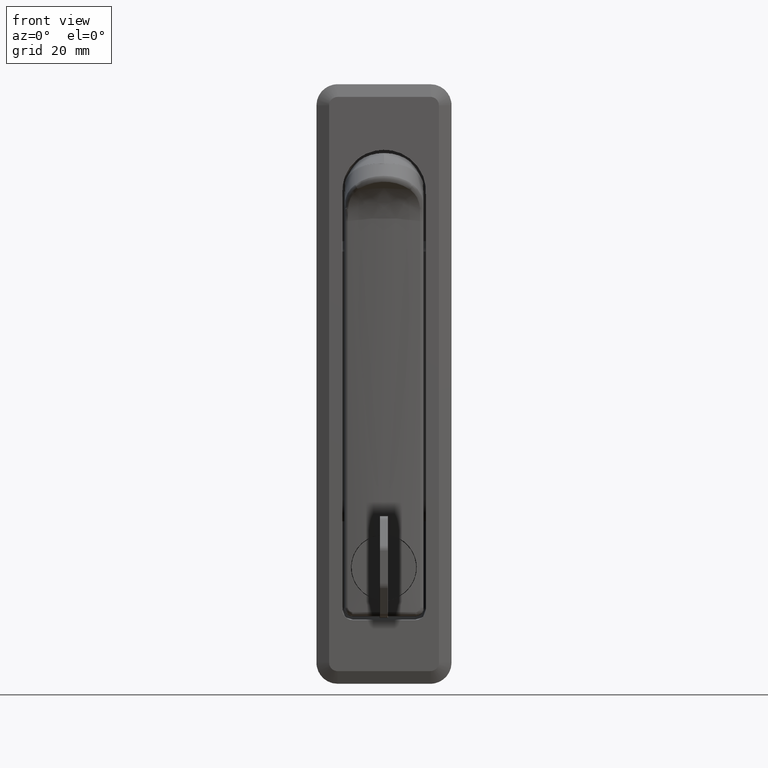
[diagram: clean part render]
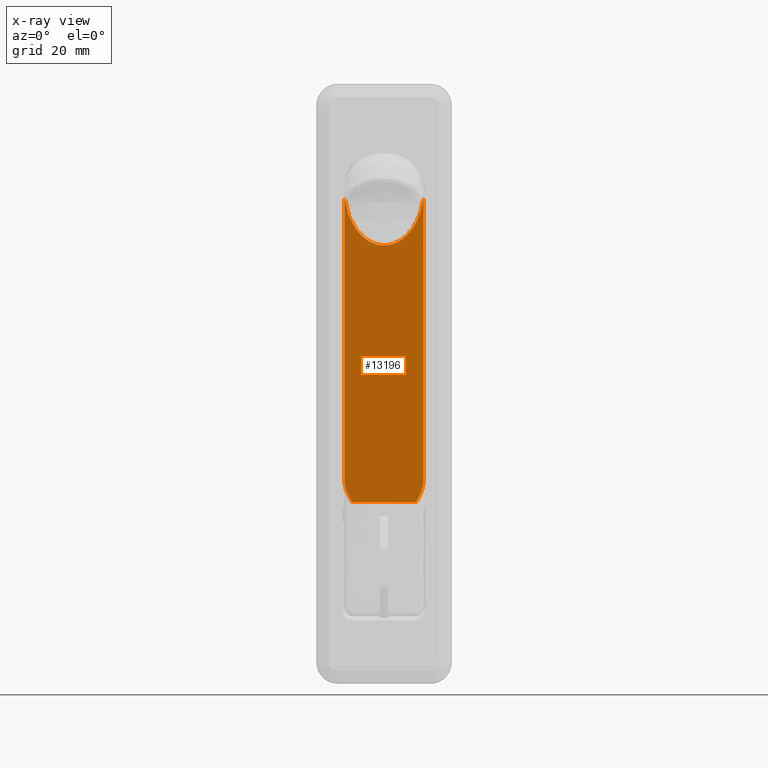
[diagram: x-ray — body ghosted, one internal face saturated and labeled with its STEP entity id]
A machine part, front view, then the same camera in x-ray: the body is ghosted and one INTERNAL B-rep face — a face not visible from any outside direction — is saturated and labeled: STEP entity #13196.
In plain terms, the highlighted face is a freeform B-spline surface patch.
Its self-contained STEP definition (entity closure, byte-faithful):
#9078=CARTESIAN_POINT('',(2.000001280259175,-9.400000000000000,-1.833029719230935));
#9079=VERTEX_POINT('',#9078);
#9093=CARTESIAN_POINT('',(2.000001280259175,-9.241221833694022,-1.833029719230935));
#9094=VERTEX_POINT('',#9093);
#9095=CARTESIAN_POINT('',(2.000001280259175,-9.400000000000000,-1.833029719230935));
#9096=CARTESIAN_POINT('',(2.000001280259175,-9.241221833694022,-1.833029719230935));
#9097=QUASI_UNIFORM_CURVE('',1,(#9095,#9096),.UNSPECIFIED.,.F.,.U.);
#9098=EDGE_CURVE('',#9079,#9094,#9097,.T.);
#9474=CARTESIAN_POINT('',(2.000001280259175,9.241221833694022,-1.833029719230935));
#9475=VERTEX_POINT('',#9474);
#9501=CARTESIAN_POINT('',(2.000001280259175,9.400000000000000,-1.833029719230935));
#9502=VERTEX_POINT('',#9501);
#9503=CARTESIAN_POINT('',(2.000001280259175,9.241221833694022,-1.833029719230935));
#9504=CARTESIAN_POINT('',(2.000001280259175,9.400000000000000,-1.833029719230935));
#9505=QUASI_UNIFORM_CURVE('',1,(#9503,#9504),.UNSPECIFIED.,.F.,.U.);
#9506=EDGE_CURVE('',#9475,#9502,#9505,.T.);
#10024=CARTESIAN_POINT('',(2.000001280259125,-7.646782247262451,-73.500000335795306));
#10025=VERTEX_POINT('',#10024);
#10039=CARTESIAN_POINT('',(2.000001280259130,-9.400000000000000,-68.521155126181185));
#10040=VERTEX_POINT('',#10039);
#10041=CARTESIAN_POINT('',(2.000001280259130,-9.400000000000000,-68.521155126181185));
#10042=CARTESIAN_POINT('',(2.000001280259130,-9.400000000000004,-68.746064812345992));
#10043=CARTESIAN_POINT('',(2.000001280259128,-9.385143563259163,-68.968537613672851));
#10044=CARTESIAN_POINT('',(2.000001280259128,-9.331480689365879,-69.409554724327393));
#10045=CARTESIAN_POINT('',(2.000001280259128,-9.292625260271926,-69.628090997561287));
#10046=CARTESIAN_POINT('',(2.000001280259127,-9.219215835357304,-69.953414260274769));
#10047=CARTESIAN_POINT('',(2.000001280259127,-9.192214869684195,-70.061440164910707));
#10048=CARTESIAN_POINT('',(2.000001280259127,-9.133546366459036,-70.276726521574034));
#10049=CARTESIAN_POINT('',(2.000001280259126,-9.101828785703880,-70.384140774446934));
#10050=CARTESIAN_POINT('',(2.000001280259128,-9.000571263560595,-70.704221362821997));
#10051=CARTESIAN_POINT('',(2.000001280259126,-8.925235203224183,-70.913937675620915));
#10052=CARTESIAN_POINT('',(2.000001280259126,-8.680485925182138,-71.534301859986783));
#10053=CARTESIAN_POINT('',(2.000001280259126,-8.492401293550035,-71.936197640976062));
#10054=CARTESIAN_POINT('',(2.000001280259125,-8.188301629012274,-72.528741759841012));
#10055=CARTESIAN_POINT('',(2.000001280259125,-8.030714460848655,-72.822418233020613));
#10056=CARTESIAN_POINT('',(2.000001280259124,-7.840317592145280,-73.161972782666794));
#10057=CARTESIAN_POINT('',(2.000001280259125,-7.757653357281957,-73.306996679626693));
#10058=CARTESIAN_POINT('',(2.000001280259125,-7.702344882079784,-73.403586004679227));
#10059=CARTESIAN_POINT('',(2.000001280259136,-7.674518068412366,-73.451943977699244));
#10060=CARTESIAN_POINT('',(2.000001280259135,-7.646782247262549,-73.500000335795505));
#10061=B_SPLINE_CURVE_WITH_KNOTS('',3,(#10041,#10042,#10043,#10044,#10045,#10046,#10047,#10048,#10049,#10050,#10051,#10052,#10053,#10054,#10055,#10056,#10057,#10058,#10059,#10060),.UNSPECIFIED.,.F.,.U.,(4,2,2,2,2,2,2,1,1,2,4),(0.0,0.125000000000001,0.250000000000002,0.312500000000002,0.375000000000003,0.500000000000004,0.750000000000005,0.875000000000006,0.937500000000006,0.968750000000003,1.0),.UNSPECIFIED.);
#10062=EDGE_CURVE('',#10040,#10025,#10061,.T.);
#10468=CARTESIAN_POINT('',(2.000001280259125,7.646782247262451,-73.500000335795306));
#10469=VERTEX_POINT('',#10468);
#10470=CARTESIAN_POINT('',(2.000001280259130,9.400000000000000,-68.521155126181185));
#10471=VERTEX_POINT('',#10470);
#10472=CARTESIAN_POINT('',(2.000001280259135,7.646782247262440,-73.500000335795505));
#10473=CARTESIAN_POINT('',(2.000001280259141,7.674518068412203,-73.451943977699202));
#10474=CARTESIAN_POINT('',(2.000001280259125,7.702344882079687,-73.403586004679198));
#10475=CARTESIAN_POINT('',(2.000001280259125,7.757653357281860,-73.306996679626707));
#10476=CARTESIAN_POINT('',(2.000001280259125,7.840317592145164,-73.161972782666837));
#10477=CARTESIAN_POINT('',(2.000001280259125,8.030714460848540,-72.822418233020613));
#10478=CARTESIAN_POINT('',(2.000001280259126,8.188301629012171,-72.528741759841040));
#10479=CARTESIAN_POINT('',(2.000001280259126,8.492401293549930,-71.936197640976062));
#10480=CARTESIAN_POINT('',(2.000001280259127,8.680485925182031,-71.534301859986797));
#10481=CARTESIAN_POINT('',(2.000001280259127,8.925235203224077,-70.913937675620929));
#10482=CARTESIAN_POINT('',(2.000001280259128,9.000571263560486,-70.704221362821983));
#10483=CARTESIAN_POINT('',(2.000001280259127,9.101828785703777,-70.384140774446934));
#10484=CARTESIAN_POINT('',(2.000001280259127,9.133546366458928,-70.276726521574020));
#10485=CARTESIAN_POINT('',(2.000001280259127,9.192214869684088,-70.061440164910692));
#10486=CARTESIAN_POINT('',(2.000001280259127,9.219215835357199,-69.953414260274755));
#10487=CARTESIAN_POINT('',(2.000001280259127,9.292625260271819,-69.628090997561273));
#10488=CARTESIAN_POINT('',(2.000001280259128,9.331480689365780,-69.409554724327364));
#10489=CARTESIAN_POINT('',(2.000001280259128,9.385143563259062,-68.968537613672822));
#10490=CARTESIAN_POINT('',(2.000001280259130,9.400000000000006,-68.746064812346006));
#10491=CARTESIAN_POINT('',(2.000001280259130,9.400000000000000,-68.521155126181185));
#10492=B_SPLINE_CURVE_WITH_KNOTS('',3,(#10472,#10473,#10474,#10475,#10476,#10477,#10478,#10479,#10480,#10481,#10482,#10483,#10484,#10485,#10486,#10487,#10488,#10489,#10490,#10491),.UNSPECIFIED.,.F.,.U.,(4,2,1,1,2,2,2,2,2,2,4),(0.0,0.031249999999996,0.062499999999993,0.124999999999992,0.249999999999991,0.499999999999989,0.624999999999988,0.687499999999987,0.749999999999987,0.874999999999993,1.0),.UNSPECIFIED.);
#10493=EDGE_CURVE('',#10469,#10471,#10492,.T.);
#13126=CARTESIAN_POINT('',(2.000001280259175,9.400000000000000,-1.833029719230935));
#13127=CARTESIAN_POINT('',(2.000001280259130,9.400000000000000,-68.521155126181185));
#13128=QUASI_UNIFORM_CURVE('',1,(#13126,#13127),.UNSPECIFIED.,.F.,.U.);
#13129=EDGE_CURVE('',#9502,#10471,#13128,.T.);
#13149=CARTESIAN_POINT('',(2.000001280259175,-9.400000000000000,-1.833029719230935));
#13150=CARTESIAN_POINT('',(2.000001280259130,-9.400000000000000,-68.521155126181185));
#13151=QUASI_UNIFORM_CURVE('',1,(#13149,#13150),.UNSPECIFIED.,.F.,.U.);
#13152=EDGE_CURVE('',#9079,#10040,#13151,.T.);
#13163=CARTESIAN_POINT('',(2.000001280259175,-10.339059543433249,1.746735324161959));
#13164=CARTESIAN_POINT('',(2.000001280259175,-10.339059543433249,-77.079767301446154));
#13165=CARTESIAN_POINT('',(2.000001280259175,10.339059039177959,1.746735324161959));
#13166=CARTESIAN_POINT('',(2.000001280259175,10.339059039177959,-77.079767301446154));
#13167=B_SPLINE_SURFACE_WITH_KNOTS('',1,1,((#13163,#13165),(#13164,#13166)),.UNSPECIFIED.,.F.,.F.,.U.,(2,2),(2,2),(0.0,78.826502625608114),(0.0,20.678118582611209),.UNSPECIFIED.);
#13168=CARTESIAN_POINT('',(2.000001280259125,-7.646782247262451,-73.500000335795306));
#13169=CARTESIAN_POINT('',(2.000001280259125,7.646782247262451,-73.500000335795306));
#13170=QUASI_UNIFORM_CURVE('',1,(#13168,#13169),.UNSPECIFIED.,.F.,.U.);
#13171=EDGE_CURVE('',#10025,#10469,#13170,.T.);
#13172=ORIENTED_EDGE('',*,*,#13171,.T.);
#13173=ORIENTED_EDGE('',*,*,#10493,.T.);
#13174=ORIENTED_EDGE('',*,*,#13129,.F.);
#13175=ORIENTED_EDGE('',*,*,#9506,.F.);
#13176=CARTESIAN_POINT('',(2.000001280259175,9.241221833694022,-1.833029719230935));
#13177=CARTESIAN_POINT('',(2.000001280259176,7.811534471097816,-12.693606576689218));
#13178=CARTESIAN_POINT('',(2.000001280259175,-1.010290E-013,-12.693606576689220));
#13179=CARTESIAN_POINT('',(2.000001280259176,-7.811534471097984,-12.693606576689218));
#13180=CARTESIAN_POINT('',(2.000001280259175,-9.241221833694022,-1.833029719230935));
#13188=(BOUNDED_CURVE()B_SPLINE_CURVE(2,(#13176,#13177,#13178,#13179,#13180),.UNSPECIFIED.,.F.,.U.)B_SPLINE_CURVE_WITH_KNOTS((3,2,3),(0.0,0.500000000000000,1.0),.UNSPECIFIED.)CURVE()GEOMETRIC_REPRESENTATION_ITEM()RATIONAL_B_SPLINE_CURVE((1.0,0.769097718679054,1.0,0.769097718679054,1.0))REPRESENTATION_ITEM(''));
#13189=EDGE_CURVE('',#9475,#9094,#13188,.T.);
#13190=ORIENTED_EDGE('',*,*,#13189,.T.);
#13191=ORIENTED_EDGE('',*,*,#9098,.F.);
#13192=ORIENTED_EDGE('',*,*,#13152,.T.);
#13193=ORIENTED_EDGE('',*,*,#10062,.T.);
#13194=EDGE_LOOP('',(#13172,#13173,#13174,#13175,#13190,#13191,#13192,#13193));
#13195=FACE_OUTER_BOUND('',#13194,.T.);
#13196=ADVANCED_FACE('',(#13195),#13167,.T.);